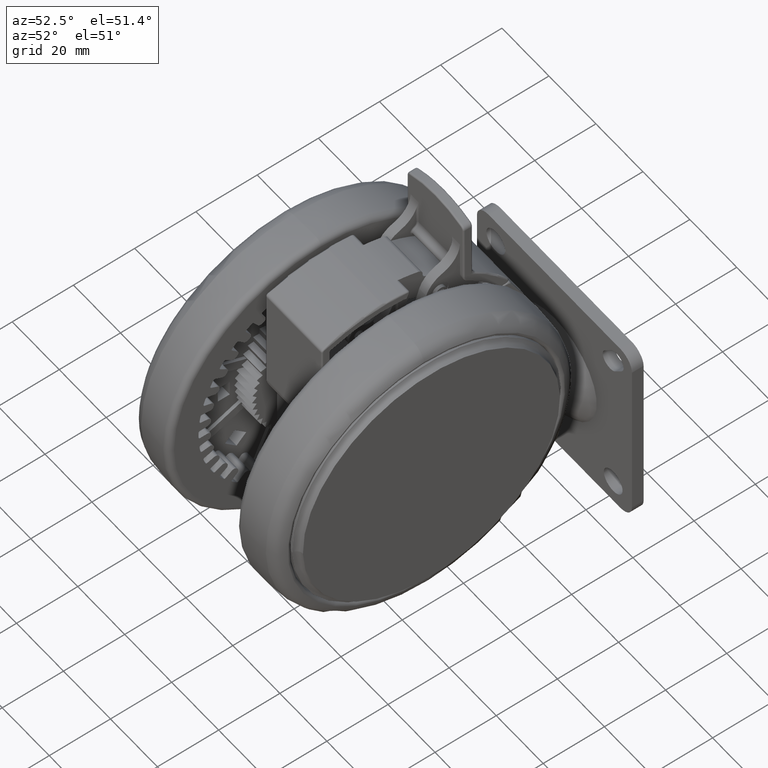
[diagram: clean part render]
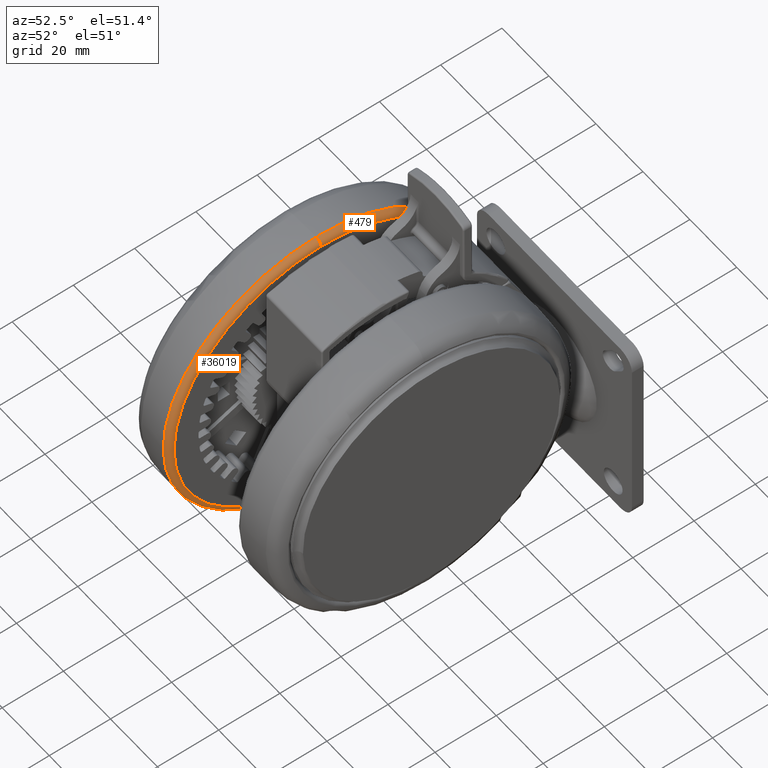
[diagram: same view with one multi-face feature highlighted, each face labeled with its STEP entity id]
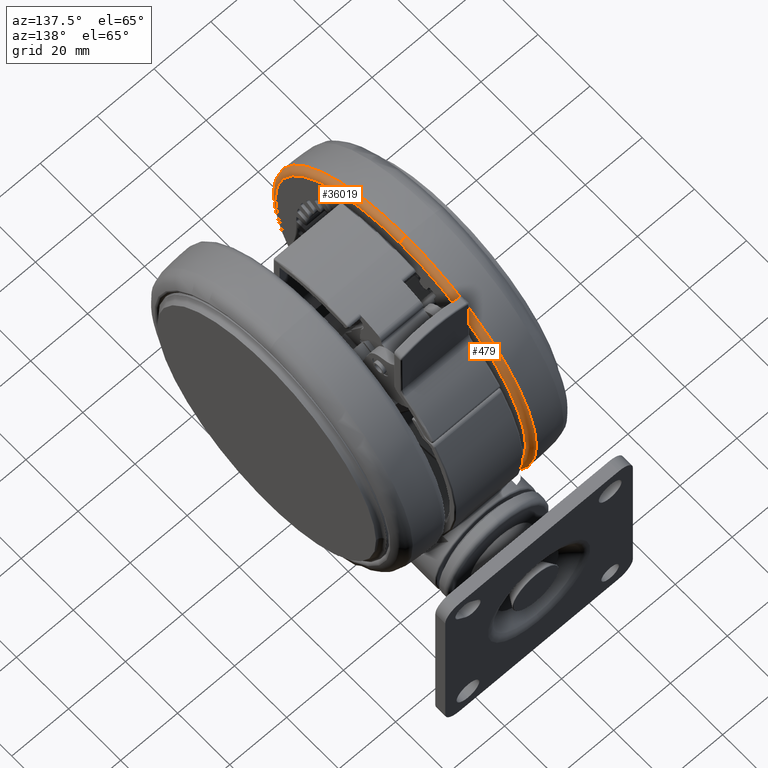
[diagram: same view with one multi-face feature highlighted, each face labeled with its STEP entity id]
A machine part, auxiliary view. The highlighted faces form ONE feature: a constant-radius fillet chain: 2 tangent blend faces with common blend radius 2 mm. The faces share edges in the B-rep.
A second angle (auxiliary view) of the same feature is appended — it is thin or edge-on in the first view.
Their STEP definitions:
[1] entity #479 (Torus):
#40 = AXIS2_PLACEMENT_3D ( 'NONE', #50822, #82728, #12418 ) ;
#124 = CARTESIAN_POINT ( 'NONE',  ( -0.9725423849658322300, -47.99017363423747900, -49.09999999999984500 ) ) ;
#234 = DIRECTION ( 'NONE',  ( -0.9997947190500678900, 0.02026128721468448100, 0.0000000000000000000 ) ) ;
#479 = ADVANCED_FACE ( 'NONE', ( #59783 ), #42697, .T. ) ;
#2308 = CIRCLE ( 'NONE', #17329, 48.00003196817215200 ) ;
#3118 = DIRECTION ( 'NONE',  ( -0.0000000000000000000, 0.0000000000000000000, -1.000000000000000000 ) ) ;
#4276 = ORIENTED_EDGE ( 'NONE', *, *, #14297, .T. ) ;
#4753 = CIRCLE ( 'NONE', #8944, 1.999999999999999800 ) ;
#6491 = DIRECTION ( 'NONE',  ( 0.02026128721468458900, 0.9997947190500678900, 0.0000000000000000000 ) ) ;
#7024 = EDGE_CURVE ( 'NONE', #40657, #38380, #38135, .T. ) ;
#7235 = EDGE_LOOP ( 'NONE', ( #64817, #4276, #71428, #30513 ) ) ;
#8944 = AXIS2_PLACEMENT_3D ( 'NONE', #38592, #234, #45025 ) ;
#12418 = DIRECTION ( 'NONE',  ( -0.02026128721468459900, -0.9997947190500677800, 0.0000000000000000000 ) ) ;
#14297 = EDGE_CURVE ( 'NONE', #14579, #27976, #4753, .T. ) ;
#14579 = VERTEX_POINT ( 'NONE', #66875 ) ;
#17329 = AXIS2_PLACEMENT_3D ( 'NONE', #66304, #27912, #72734 ) ;
#27912 = DIRECTION ( 'NONE',  ( -0.0000000000000000000, 0.0000000000000000000, -1.000000000000000000 ) ) ;
#27976 = VERTEX_POINT ( 'NONE', #30394 ) ;
#30394 = CARTESIAN_POINT ( 'NONE',  ( 1.013064409789570500, 49.98974079427887300, -49.08869196450866900 ) ) ;
#30513 = ORIENTED_EDGE ( 'NONE', *, *, #7024, .F. ) ;
#33591 = AXIS2_PLACEMENT_3D ( 'NONE', #41490, #3118, #47923 ) ;
#34392 = CARTESIAN_POINT ( 'NONE',  ( -1.013064311678883300, -49.98973111072790900, -49.08869196450866900 ) ) ;
#38135 = CIRCLE ( 'NONE', #74496, 1.999999999999999800 ) ;
#38380 = VERTEX_POINT ( 'NONE', #34392 ) ;
#38592 = CARTESIAN_POINT ( 'NONE',  ( 0.9725424830765194700, 47.99018331778844300, -49.09999999999984500 ) ) ;
#40657 = VERTEX_POINT ( 'NONE', #70776 ) ;
#41490 = CARTESIAN_POINT ( 'NONE',  ( 4.905534659038757200E-008, 4.841775480546317600E-006, -49.08869196450866900 ) ) ;
#42697 = TOROIDAL_SURFACE ( 'NONE', #40, 48.00003196817215900, 1.999999999999999100 ) ;
#43423 = CIRCLE ( 'NONE', #33591, 50.00000000000000700 ) ;
#44894 = DIRECTION ( 'NONE',  ( 0.9997947190500678900, -0.02026128721468460300, -0.0000000000000000000 ) ) ;
#45025 = DIRECTION ( 'NONE',  ( -0.02026128721468448100, -0.9997947190500678900, 0.0000000000000000000 ) ) ;
#47923 = DIRECTION ( 'NONE',  ( -0.02026128721468460300, -0.9997947190500677800, 0.0000000000000000000 ) ) ;
#50822 = CARTESIAN_POINT ( 'NONE',  ( 4.905534659038757200E-008, 4.841775480546317600E-006, -49.09999999999984500 ) ) ;
#59783 = FACE_OUTER_BOUND ( 'NONE', #7235, .T. ) ;
#60209 = EDGE_CURVE ( 'NONE', #40657, #14579, #2308, .T. ) ;
#64817 = ORIENTED_EDGE ( 'NONE', *, *, #60209, .T. ) ;
#66304 = CARTESIAN_POINT ( 'NONE',  ( 4.905534659038757200E-008, 4.841775480546317600E-006, -47.09999999999985200 ) ) ;
#66875 = CARTESIAN_POINT ( 'NONE',  ( 0.9725424830765194700, 47.99018331778844300, -47.09999999999985200 ) ) ;
#70776 = CARTESIAN_POINT ( 'NONE',  ( -0.9725423849658322300, -47.99017363423747900, -47.09999999999985200 ) ) ;
#71428 = ORIENTED_EDGE ( 'NONE', *, *, #75631, .F. ) ;
#72734 = DIRECTION ( 'NONE',  ( -0.02026128721468460600, -0.9997947190500680000, 0.0000000000000000000 ) ) ;
#74496 = AXIS2_PLACEMENT_3D ( 'NONE', #124, #44894, #6491 ) ;
#75631 = EDGE_CURVE ( 'NONE', #38380, #27976, #43423, .T. ) ;
#82728 = DIRECTION ( 'NONE',  ( -0.0000000000000000000, 0.0000000000000000000, -1.000000000000000000 ) ) ;
[2] entity #36019 (Torus):
#124 = CARTESIAN_POINT ( 'NONE',  ( -0.9725423849658322300, -47.99017363423747900, -49.09999999999984500 ) ) ;
#195 = CARTESIAN_POINT ( 'NONE',  ( 4.905534659038757200E-008, 4.841775480546317600E-006, -49.09999999999984500 ) ) ;
#234 = DIRECTION ( 'NONE',  ( -0.9997947190500678900, 0.02026128721468448100, 0.0000000000000000000 ) ) ;
#1024 = CARTESIAN_POINT ( 'NONE',  ( 4.905534659038757200E-008, 4.841775480546317600E-006, -47.09999999999985200 ) ) ;
#1355 = CARTESIAN_POINT ( 'NONE',  ( 4.905534659038757200E-008, 4.841775480546317600E-006, -49.08869196450866900 ) ) ;
#1573 = FACE_OUTER_BOUND ( 'NONE', #51909, .T. ) ;
#4753 = CIRCLE ( 'NONE', #8944, 1.999999999999999800 ) ;
#5942 = AXIS2_PLACEMENT_3D ( 'NONE', #1355, #46137, #7729 ) ;
#6491 = DIRECTION ( 'NONE',  ( 0.02026128721468458900, 0.9997947190500678900, 0.0000000000000000000 ) ) ;
#7024 = EDGE_CURVE ( 'NONE', #40657, #38380, #38135, .T. ) ;
#7387 = DIRECTION ( 'NONE',  ( -0.02026128721468460600, -0.9997947190500680000, 0.0000000000000000000 ) ) ;
#7729 = DIRECTION ( 'NONE',  ( -0.02026128721468460300, -0.9997947190500677800, 0.0000000000000000000 ) ) ;
#8944 = AXIS2_PLACEMENT_3D ( 'NONE', #38592, #234, #45025 ) ;
#14297 = EDGE_CURVE ( 'NONE', #14579, #27976, #4753, .T. ) ;
#14579 = VERTEX_POINT ( 'NONE', #66875 ) ;
#16820 = CIRCLE ( 'NONE', #5942, 50.00000000000000700 ) ;
#27098 = CIRCLE ( 'NONE', #51182, 48.00003196817215200 ) ;
#27976 = VERTEX_POINT ( 'NONE', #30394 ) ;
#29740 = ORIENTED_EDGE ( 'NONE', *, *, #14297, .F. ) ;
#30394 = CARTESIAN_POINT ( 'NONE',  ( 1.013064409789570500, 49.98974079427887300, -49.08869196450866900 ) ) ;
#33620 = TOROIDAL_SURFACE ( 'NONE', #56049, 48.00003196817215900, 1.999999999999999100 ) ;
#33817 = EDGE_CURVE ( 'NONE', #27976, #38380, #16820, .T. ) ;
#34392 = CARTESIAN_POINT ( 'NONE',  ( -1.013064311678883300, -49.98973111072790900, -49.08869196450866900 ) ) ;
#36019 = ADVANCED_FACE ( 'NONE', ( #1573 ), #33620, .T. ) ;
#38135 = CIRCLE ( 'NONE', #74496, 1.999999999999999800 ) ;
#38380 = VERTEX_POINT ( 'NONE', #34392 ) ;
#38592 = CARTESIAN_POINT ( 'NONE',  ( 0.9725424830765194700, 47.99018331778844300, -49.09999999999984500 ) ) ;
#40657 = VERTEX_POINT ( 'NONE', #70776 ) ;
#43103 = ORIENTED_EDGE ( 'NONE', *, *, #7024, .T. ) ;
#44894 = DIRECTION ( 'NONE',  ( 0.9997947190500678900, -0.02026128721468460300, -0.0000000000000000000 ) ) ;
#44976 = DIRECTION ( 'NONE',  ( -0.02026128721468459900, -0.9997947190500677800, 0.0000000000000000000 ) ) ;
#45025 = DIRECTION ( 'NONE',  ( -0.02026128721468448100, -0.9997947190500678900, 0.0000000000000000000 ) ) ;
#45793 = DIRECTION ( 'NONE',  ( -0.0000000000000000000, 0.0000000000000000000, -1.000000000000000000 ) ) ;
#46137 = DIRECTION ( 'NONE',  ( -0.0000000000000000000, 0.0000000000000000000, -1.000000000000000000 ) ) ;
#51182 = AXIS2_PLACEMENT_3D ( 'NONE', #1024, #45793, #7387 ) ;
#51909 = EDGE_LOOP ( 'NONE', ( #29740, #60601, #43103, #69742 ) ) ;
#56049 = AXIS2_PLACEMENT_3D ( 'NONE', #195, #70492, #44976 ) ;
#60601 = ORIENTED_EDGE ( 'NONE', *, *, #68667, .T. ) ;
#66875 = CARTESIAN_POINT ( 'NONE',  ( 0.9725424830765194700, 47.99018331778844300, -47.09999999999985200 ) ) ;
#68667 = EDGE_CURVE ( 'NONE', #14579, #40657, #27098, .T. ) ;
#69742 = ORIENTED_EDGE ( 'NONE', *, *, #33817, .F. ) ;
#70492 = DIRECTION ( 'NONE',  ( -0.0000000000000000000, 0.0000000000000000000, -1.000000000000000000 ) ) ;
#70776 = CARTESIAN_POINT ( 'NONE',  ( -0.9725423849658322300, -47.99017363423747900, -47.09999999999985200 ) ) ;
#74496 = AXIS2_PLACEMENT_3D ( 'NONE', #124, #44894, #6491 ) ;